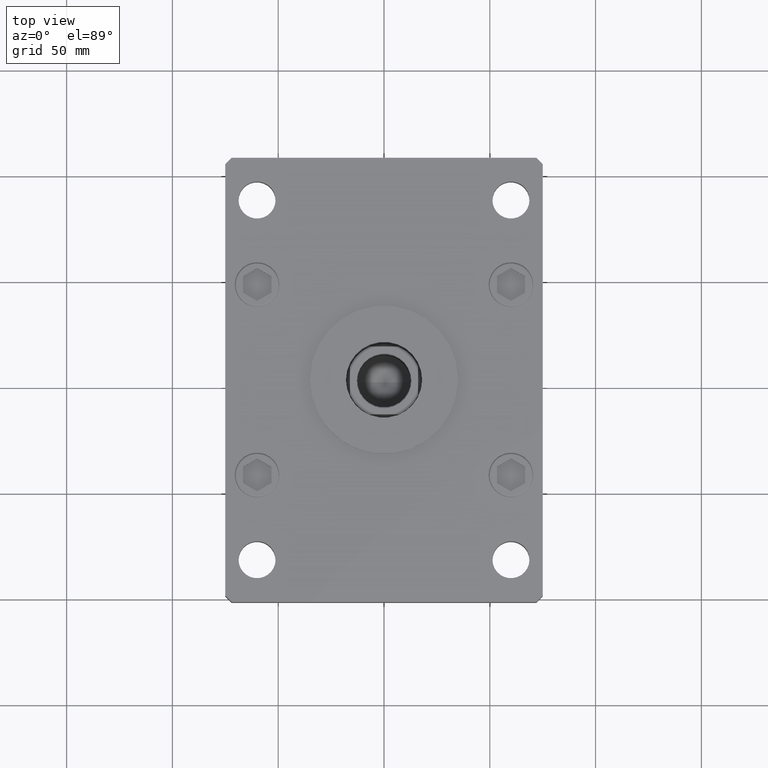
[diagram: clean part render]
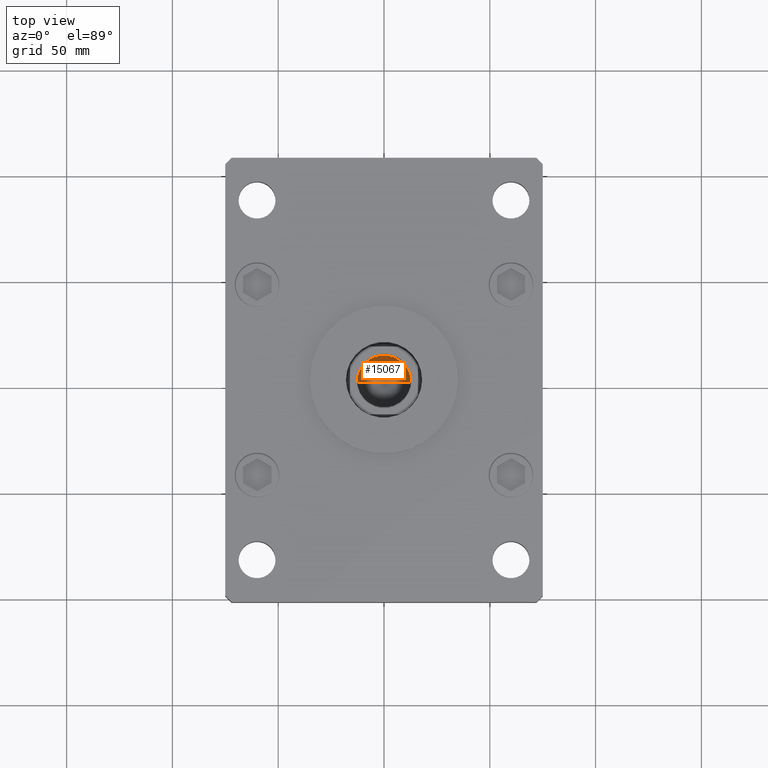
[diagram: same view with one face highlighted and labeled with its STEP entity id]
A machine part, top view. The second image highlights one B-rep face of the part: STEP entity #15067.
In plain terms, the highlighted conical surface has half-angle 59 deg.
Its self-contained STEP definition (entity closure, byte-faithful):
#2009 = CARTESIAN_POINT ( 'NONE',  ( 0.000000000000000000, 0.000000000000000000, 128.0000000000000000 ) ) ;
#2530 = FACE_OUTER_BOUND ( 'NONE', #35247, .T. ) ;
#4021 = ORIENTED_EDGE ( 'NONE', *, *, #20713, .T. ) ;
#4455 = LINE ( 'NONE', #30825, #13248 ) ;
#4505 = AXIS2_PLACEMENT_3D ( 'NONE', #2009, #26232, #42663 ) ;
#6151 = VECTOR ( 'NONE', #30777, 1000.000000000000000 ) ;
#6848 = ORIENTED_EDGE ( 'NONE', *, *, #42774, .F. ) ;
#8084 = CIRCLE ( 'NONE', #8984, 12.74999999999999112 ) ;
#8984 = AXIS2_PLACEMENT_3D ( 'NONE', #30229, #46648, #42622 ) ;
#10375 = DIRECTION ( 'NONE',  ( -0.8571673007021122226, 1.049727191138618572E-16, 0.5150380749100542666 ) ) ;
#10925 = EDGE_CURVE ( 'NONE', #51482, #26407, #44200, .T. ) ;
#13248 = VECTOR ( 'NONE', #10375, 1000.000000000000000 ) ;
#15067 = ADVANCED_FACE ( 'NONE', ( #2530 ), #21710, .F. ) ;
#17262 = VERTEX_POINT ( 'NONE', #23529 ) ;
#19352 = CARTESIAN_POINT ( 'NONE',  ( 12.74999999999999112, 0.000000000000000000, 128.0000000000000000 ) ) ;
#20713 = EDGE_CURVE ( 'NONE', #26407, #17262, #8084, .T. ) ;
#21710 = CONICAL_SURFACE ( 'NONE', #4505, 12.74999999999999112, 1.029744258676654312 ) ;
#22793 = CARTESIAN_POINT ( 'NONE',  ( -1.307202896762960287E-14, 0.000000000000000000, 120.3390271073986213 ) ) ;
#23529 = CARTESIAN_POINT ( 'NONE',  ( -12.74999999999999112, 1.561424668912874125E-15, 128.0000000000000000 ) ) ;
#26232 = DIRECTION ( 'NONE',  ( -0.000000000000000000, -0.000000000000000000, 1.000000000000000000 ) ) ;
#26407 = VERTEX_POINT ( 'NONE', #19352 ) ;
#30229 = CARTESIAN_POINT ( 'NONE',  ( 0.000000000000000000, 0.000000000000000000, 128.0000000000000000 ) ) ;
#30777 = DIRECTION ( 'NONE',  ( 0.8571673007021122226, 0.000000000000000000, 0.5150380749100542666 ) ) ;
#30825 = CARTESIAN_POINT ( 'NONE',  ( -12.74999999999999112, 1.561424668912874125E-15, 128.0000000000000000 ) ) ;
#35247 = EDGE_LOOP ( 'NONE', ( #6848, #46328, #4021 ) ) ;
#42622 = DIRECTION ( 'NONE',  ( 1.000000000000000000, 0.000000000000000000, 0.000000000000000000 ) ) ;
#42663 = DIRECTION ( 'NONE',  ( 1.000000000000000000, 0.000000000000000000, 0.000000000000000000 ) ) ;
#42774 = EDGE_CURVE ( 'NONE', #51482, #17262, #4455, .T. ) ;
#44200 = LINE ( 'NONE', #51233, #6151 ) ;
#46328 = ORIENTED_EDGE ( 'NONE', *, *, #10925, .T. ) ;
#46648 = DIRECTION ( 'NONE',  ( -0.000000000000000000, -0.000000000000000000, 1.000000000000000000 ) ) ;
#51233 = CARTESIAN_POINT ( 'NONE',  ( 12.74999999999999112, 0.000000000000000000, 128.0000000000000000 ) ) ;
#51482 = VERTEX_POINT ( 'NONE', #22793 ) ;